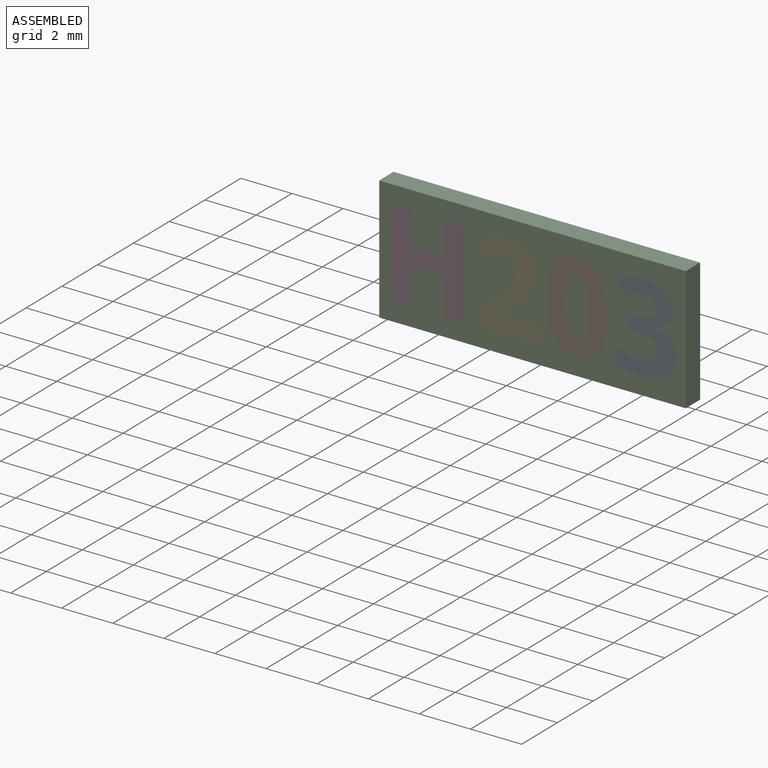
[diagram: assembled view]
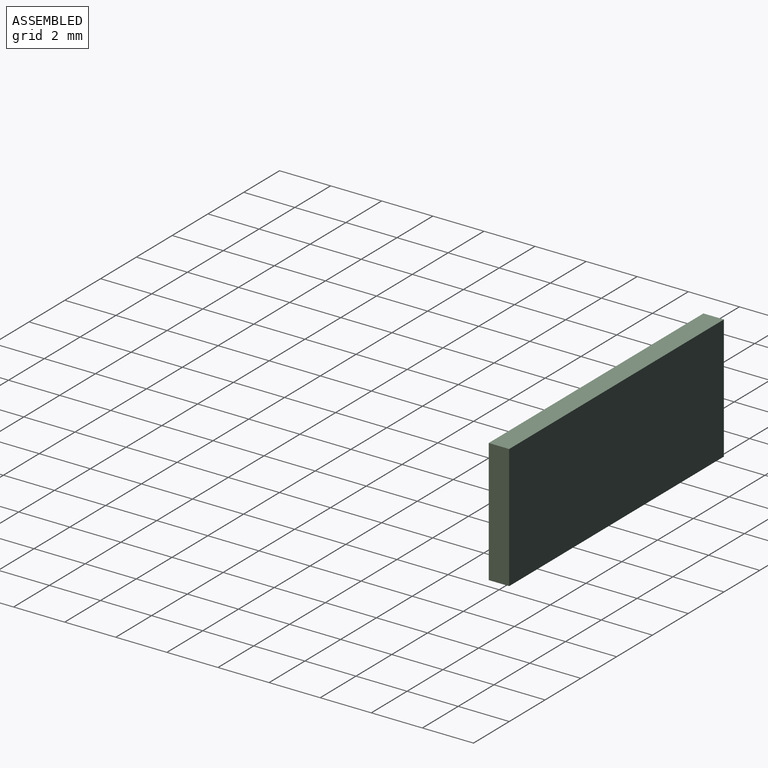
[diagram: assembled view, second angle]
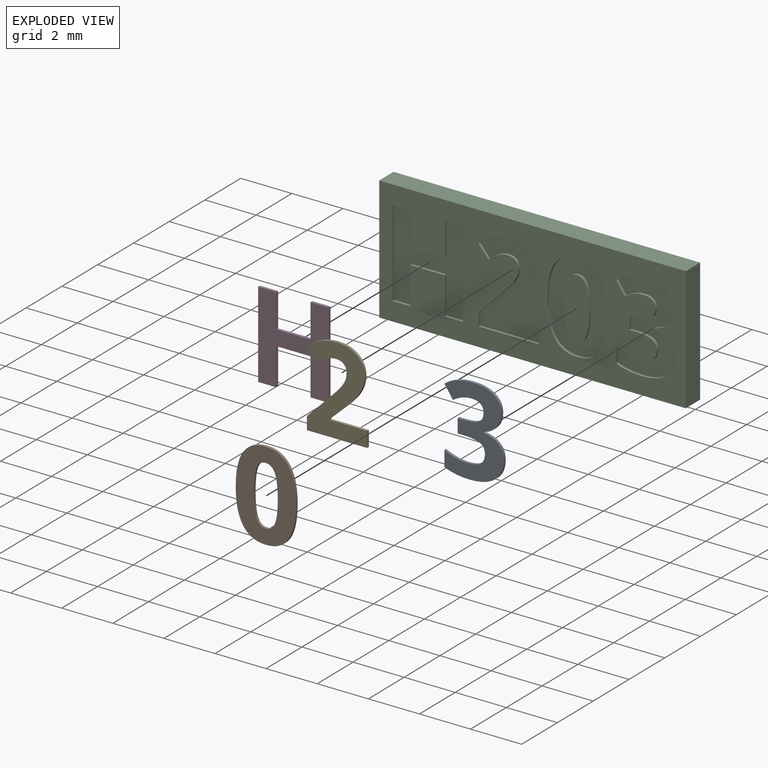
[diagram: exploded view]
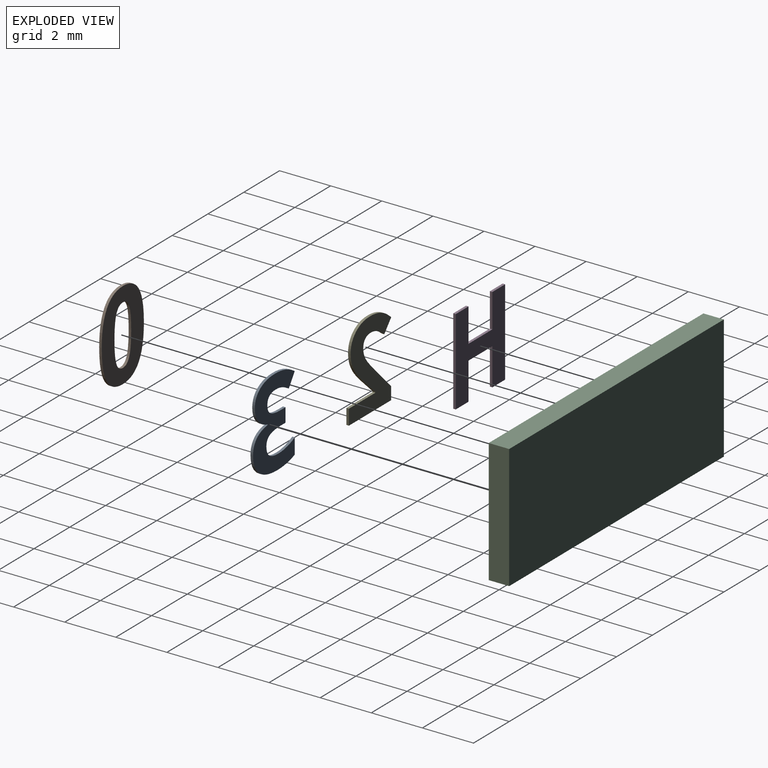
[diagram: exploded view, second angle]
ASSEMBLY  parts=5 mates=4
PART A: 29 faces, bbox 2.3x0.1x3.5 mm
  f0: plane 3.47x2.33mm, normal (0,-1,0), area 4.3mm2, adj f1,f2,f3,f4,f5,f6,f7,f8
  f1: extruded ~0.83x0.21mm, area 0.1mm2, adj f0,f2,f25,f27
  f2: extruded ~1.1x0.33mm, area 0.1mm2, adj f0,f1,f3,f25
  f3: plane 0.49x0.33mm, normal (-0.83,0,-0.56), area 0.1mm2, adj f0,f2,f4,f25
  f4: extruded ~0.38x0.19mm, area 0mm2, adj f0,f3,f5,f25
  f5: extruded ~0.34x0.1mm, area 0mm2, adj f0,f4,f6,f25
  f6: extruded ~0.48x0.38mm, area 0.1mm2, adj f0,f5,f7,f25
  f7: extruded ~0.35x0.18mm, area 0mm2, adj f0,f6,f8,f25
  f8: extruded ~0.57x0.1mm, area 0.1mm2, adj f0,f7,f9,f25
  f9: plane 0.26x0.1mm, normal (0,0,1), area 0mm2, adj f0,f8,f10,f25
  f10: plane 0.55x0.1mm, normal (-1,0,0), area 0.1mm2, adj f0,f9,f11,f25
  f11: plane 0.26x0.1mm, normal (0,0,-1), area 0mm2, adj f0,f10,f12,f25
  f12: extruded ~0.62x0.1mm, area 0.1mm2, adj f0,f11,f13,f25
  f13: extruded ~0.34x0.19mm, area 0mm2, adj f0,f12,f14,f25
  f14: extruded ~0.39x0.17mm, area 0mm2, adj f0,f13,f15,f25
  f15: extruded ~0.52x0.12mm, area 0.1mm2, adj f0,f14,f16,f25
  f16: extruded ~0.47x0.1mm, area 0mm2, adj f0,f15,f17,f25
  f17: extruded ~0.43x0.16mm, area 0mm2, adj f0,f16,f18,f25
  f18: plane 0.61x0.1mm, normal (-1,0,0), area 0.1mm2, adj f0,f17,f19,f25
  f19: extruded ~0.97x0.18mm, area 0.1mm2, adj f0,f18,f20,f25
  f20: extruded ~1.01x0.27mm, area 0.1mm2, adj f0,f19,f21,f25
  f21: extruded ~0.76x0.35mm, area 0.1mm2, adj f0,f20,f22,f25
  f22: extruded ~0.53x0.21mm, area 0.1mm2, adj f0,f21,f23,f25
  f23: extruded ~0.62x0.25mm, area 0.1mm2, adj f0,f22,f24,f25
  f24: plane 0.1x0.01mm, normal (1,0,0), area 0mm2, adj f0,f23,f25,f26
  f25: plane 3.47x2.33mm, normal (0,1,0), area 4.3mm2, adj f1,f2,f3,f4,f5,f6,f7,f8
  f26: extruded ~0.54x0.3mm, area 0.1mm2, adj f0,f24,f25,f28
  f27: extruded ~0.59x0.3mm, area 0.1mm2, adj f0,f1,f25,f28
  f28: extruded ~0.54x0.19mm, area 0.1mm2, adj f0,f25,f26,f27
PART B: 18 faces, bbox 2.4x0.1x3.5 mm
  f0: plane 3.47x2.36mm, normal (0,-1,0), area 5mm2, adj f1,f2,f3,f4,f5,f6,f7,f8
  f1: extruded ~0.88x0.44mm, area 0.1mm2, adj f0,f2,f11,f13
  f2: extruded ~0.89x0.42mm, area 0.1mm2, adj f0,f1,f3,f11
  f3: extruded ~1.32x0.29mm, area 0.1mm2, adj f0,f2,f4,f11
  f4: extruded ~1.29x0.3mm, area 0.1mm2, adj f0,f3,f5,f11
  f5: extruded ~0.88x0.44mm, area 0.1mm2, adj f0,f4,f11,f12
  f6: extruded ~0.36x0.27mm, area 0mm2, adj f0,f7,f11,f16
  f7: extruded ~0.36x0.27mm, area 0mm2, adj f0,f6,f8,f11
  f8: extruded ~0.89x0.11mm, area 0.1mm2, adj f0,f7,f9,f11
  f9: extruded ~0.89x0.11mm, area 0.1mm2, adj f0,f8,f10,f11
  f10: extruded ~0.36x0.27mm, area 0mm2, adj f0,f9,f11,f15
  f11: plane 3.47x2.36mm, normal (0,1,0), area 5mm2, adj f1,f2,f3,f4,f5,f6,f7,f8
  f12: extruded ~0.89x0.42mm, area 0.1mm2, adj f0,f5,f11,f14
  f13: extruded ~1.3x0.3mm, area 0.1mm2, adj f0,f1,f11,f14
  f14: extruded ~1.31x0.29mm, area 0.1mm2, adj f0,f11,f12,f13
  f15: extruded ~0.36x0.27mm, area 0mm2, adj f0,f10,f11,f17
  f16: extruded ~0.89x0.11mm, area 0.1mm2, adj f0,f6,f11,f17
  f17: extruded ~0.89x0.11mm, area 0.1mm2, adj f0,f11,f15,f16
PART C: 90 faces, bbox 12x0.8x4.9 mm
  f0: plane 12x4.85mm, normal (0,-1,0), area 37.2mm2, adj f1,f2,f3,f4,f6,f7,f8,f9
  f1: plane 12x0.8mm, normal (0,0,-1), area 9.6mm2, adj f0,f2,f4,f5
  f2: plane 4.85x0.8mm, normal (1,0,0), area 3.9mm2, adj f0,f1,f3,f5
  f3: plane 12x0.8mm, normal (0,0,1), area 9.6mm2, adj f0,f2,f4,f5
  f4: plane 4.85x0.8mm, normal (-1,0,0), area 3.9mm2, adj f0,f1,f3,f5
  f5: plane 12x4.85mm, normal (0,1,0), area 58.2mm2, adj f1,f2,f3,f4
  f6: plane 0.6x0.1mm, normal (-1,0,0), area 0.1mm2, adj f0,f7,f29,f30
  f7: plane 1.47x0.1mm, normal (0,0,-1), area 0.1mm2, adj f0,f6,f8,f30
  f8: plane 0.1x0.03mm, normal (-1,0,0), area 0mm2, adj f0,f7,f9,f30
  f9: plane 0.43x0.41mm, normal (-0.69,0,0.73), area 0.1mm2, adj f0,f8,f10,f30
  f10: extruded ~0.61x0.61mm, area 0.1mm2, adj f0,f9,f11,f30
  f11: extruded ~0.42x0.25mm, area 0mm2, adj f0,f10,f12,f30
  f12: extruded ~0.44x0.1mm, area 0mm2, adj f0,f11,f13,f30
  f13: extruded ~0.48x0.13mm, area 0.1mm2, adj f0,f12,f14,f30
  f14: extruded ~0.38x0.32mm, area 0.1mm2, adj f0,f13,f15,f30
  f15: extruded ~0.56x0.12mm, area 0.1mm2, adj f0,f14,f16,f30
  f16: extruded ~0.43x0.1mm, area 0mm2, adj f0,f15,f17,f30
  f17: extruded ~0.36x0.13mm, area 0mm2, adj f0,f16,f18,f30
  f18: extruded ~0.41x0.3mm, area 0.1mm2, adj f0,f17,f19,f30
  f19: plane 0.46x0.39mm, normal (0.76,0,0.65), area 0.1mm2, adj f0,f18,f20,f30
  f20: extruded ~0.39x0.26mm, area 0mm2, adj f0,f19,f21,f30
  f21: extruded ~0.38x0.1mm, area 0mm2, adj f0,f20,f22,f30
  f22: extruded ~0.3x0.1mm, area 0mm2, adj f0,f21,f23,f30
  f23: extruded ~0.3x0.11mm, area 0mm2, adj f0,f22,f24,f30
  f24: extruded ~0.26x0.1mm, area 0mm2, adj f0,f23,f25,f30
  f25: extruded ~0.28x0.17mm, area 0mm2, adj f0,f24,f26,f30
  f26: extruded ~0.53x0.49mm, area 0.1mm2, adj f0,f25,f27,f30
  f27: plane 0.86x0.85mm, normal (0.71,0,-0.7), area 0.1mm2, adj f0,f26,f28,f30
  f28: plane 0.5x0.1mm, normal (1,0,0), area 0mm2, adj f0,f27,f29,f30
  f29: plane 2.36x0.1mm, normal (0,0,1), area 0.2mm2, adj f0,f6,f28,f30
  f30: plane 3.42x2.37mm, normal (0,-1,0), area 4.2mm2, adj f6,f7,f8,f9,f10,f11,f12,f13
  f31: extruded ~0.59x0.3mm, area 0.1mm2, adj f0,f32,f57,f58
  f32: extruded ~0.83x0.21mm, area 0.1mm2, adj f0,f31,f33,f58
  f33: extruded ~1.1x0.33mm, area 0.1mm2, adj f0,f32,f34,f58
  f34: plane 0.49x0.33mm, normal (0.83,0,0.56), area 0.1mm2, adj f0,f33,f35,f58
  f35: extruded ~0.38x0.19mm, area 0mm2, adj f0,f34,f36,f58
  f36: extruded ~0.34x0.1mm, area 0mm2, adj f0,f35,f37,f58
  f37: extruded ~0.48x0.38mm, area 0.1mm2, adj f0,f36,f38,f58
  f38: extruded ~0.35x0.18mm, area 0mm2, adj f0,f37,f39,f58
  f39: extruded ~0.57x0.1mm, area 0.1mm2, adj f0,f38,f40,f58
  f40: plane 0.26x0.1mm, normal (0,0,-1), area 0mm2, adj f0,f39,f41,f58
  f41: plane 0.55x0.1mm, normal (1,0,0), area 0.1mm2, adj f0,f40,f42,f58
  f42: plane 0.26x0.1mm, normal (0,0,1), area 0mm2, adj f0,f41,f43,f58
  f43: extruded ~0.62x0.1mm, area 0.1mm2, adj f0,f42,f44,f58
  f44: extruded ~0.34x0.19mm, area 0mm2, adj f0,f43,f45,f58
  f45: extruded ~0.39x0.17mm, area 0mm2, adj f0,f44,f46,f58
  f46: extruded ~0.52x0.12mm, area 0.1mm2, adj f0,f45,f47,f58
  f47: extruded ~0.47x0.1mm, area 0mm2, adj f0,f46,f48,f58
  f48: extruded ~0.43x0.16mm, area 0mm2, adj f0,f47,f49,f58
  f49: plane 0.61x0.1mm, normal (1,0,0), area 0.1mm2, adj f0,f48,f50,f58
  f50: extruded ~0.97x0.18mm, area 0.1mm2, adj f0,f49,f51,f58
  f51: extruded ~1.01x0.27mm, area 0.1mm2, adj f0,f50,f52,f58
  f52: extruded ~0.76x0.35mm, area 0.1mm2, adj f0,f51,f53,f58
  f53: extruded ~0.53x0.21mm, area 0.1mm2, adj f0,f52,f54,f58
  f54: extruded ~0.62x0.25mm, area 0.1mm2, adj f0,f53,f55,f58
  f55: plane 0.1x0.01mm, normal (-1,0,0), area 0mm2, adj f0,f54,f56,f58
  f56: extruded ~0.54x0.3mm, area 0.1mm2, adj f0,f55,f57,f58
  f57: extruded ~0.54x0.19mm, area 0.1mm2, adj f0,f31,f56,f58
  f58: plane 3.47x2.33mm, normal (0,-1,0), area 4.3mm2, adj f31,f32,f33,f34,f35,f36,f37,f38
  f59: extruded ~1.3x0.3mm, area 0.1mm2, adj f0,f60,f74,f75
  f60: extruded ~0.88x0.44mm, area 0.1mm2, adj f0,f59,f61,f75
  f61: extruded ~0.89x0.42mm, area 0.1mm2, adj f0,f60,f62,f75
  f62: extruded ~1.32x0.29mm, area 0.1mm2, adj f0,f61,f63,f75
  f63: extruded ~1.29x0.3mm, area 0.1mm2, adj f0,f62,f64,f75
  f64: extruded ~0.88x0.44mm, area 0.1mm2, adj f0,f63,f65,f75
  f65: extruded ~0.89x0.42mm, area 0.1mm2, adj f0,f64,f74,f75
  f66: extruded ~0.89x0.11mm, area 0.1mm2, adj f67,f73,f75,f76
  f67: extruded ~0.36x0.27mm, area 0mm2, adj f66,f68,f75,f76
  f68: extruded ~0.36x0.27mm, area 0mm2, adj f67,f69,f75,f76
  f69: extruded ~0.89x0.11mm, area 0.1mm2, adj f68,f70,f75,f76
  f70: extruded ~0.89x0.11mm, area 0.1mm2, adj f69,f71,f75,f76
  f71: extruded ~0.36x0.27mm, area 0mm2, adj f70,f72,f75,f76
  f72: extruded ~0.36x0.27mm, area 0mm2, adj f71,f73,f75,f76
  f73: extruded ~0.89x0.11mm, area 0.1mm2, adj f66,f72,f75,f76
  f74: extruded ~1.31x0.29mm, area 0.1mm2, adj f0,f59,f65,f75
  f75: plane 3.47x2.36mm, normal (0,-1,0), area 5mm2, adj f59,f60,f61,f62,f63,f64,f65,f66
  f76: plane 2.32x0.94mm, normal (0,-1,0), area 1.8mm2, adj f66,f67,f68,f69,f70,f71,f72,f73
  f77: plane 3.37x0.1mm, normal (-1,0,0), area 0.3mm2, adj f0,f78,f88,f89
  f78: plane 0.71x0.1mm, normal (0,0,-1), area 0.1mm2, adj f0,f77,f79,f89
  f79: plane 1.32x0.1mm, normal (1,0,0), area 0.1mm2, adj f0,f78,f80,f89
  f80: plane 1.33x0.1mm, normal (0,0,-1), area 0.1mm2, adj f0,f79,f81,f89
  f81: plane 1.32x0.1mm, normal (-1,0,0), area 0.1mm2, adj f0,f80,f82,f89
  f82: plane 0.72x0.1mm, normal (0,0,-1), area 0.1mm2, adj f0,f81,f83,f89
  f83: plane 3.37x0.1mm, normal (1,0,0), area 0.3mm2, adj f0,f82,f84,f89
  f84: plane 0.72x0.1mm, normal (0,0,1), area 0.1mm2, adj f0,f83,f85,f89
  f85: plane 1.46x0.1mm, normal (-1,0,0), area 0.1mm2, adj f0,f84,f86,f89
  f86: plane 1.33x0.1mm, normal (0,0,1), area 0.1mm2, adj f0,f85,f87,f89
  f87: plane 1.46x0.1mm, normal (1,0,0), area 0.1mm2, adj f0,f86,f88,f89
  f88: plane 0.71x0.1mm, normal (0,0,1), area 0.1mm2, adj f0,f77,f87,f89
  f89: plane 3.37x2.76mm, normal (0,-1,0), area 5.6mm2, adj f77,f78,f79,f80,f81,f82,f83,f84
PART D: 14 faces, bbox 2.8x0.1x3.4 mm
  f0: plane 3.37x2.76mm, normal (0,-1,0), area 5.6mm2, adj f1,f2,f3,f4,f5,f6,f7,f8
  f1: plane 0.71x0.1mm, normal (0,0,1), area 0.1mm2, adj f0,f2,f10,f12
  f2: plane 1.32x0.1mm, normal (-1,0,0), area 0.1mm2, adj f0,f1,f3,f10
  f3: plane 1.33x0.1mm, normal (0,0,1), area 0.1mm2, adj f0,f2,f4,f10
  f4: plane 1.32x0.1mm, normal (1,0,0), area 0.1mm2, adj f0,f3,f5,f10
  f5: plane 0.72x0.1mm, normal (0,0,1), area 0.1mm2, adj f0,f4,f6,f10
  f6: plane 3.37x0.1mm, normal (-1,0,0), area 0.3mm2, adj f0,f5,f7,f10
  f7: plane 0.72x0.1mm, normal (0,0,-1), area 0.1mm2, adj f0,f6,f8,f10
  f8: plane 1.46x0.1mm, normal (1,0,0), area 0.1mm2, adj f0,f7,f9,f10
  f9: plane 1.33x0.1mm, normal (0,0,-1), area 0.1mm2, adj f0,f8,f10,f11
  f10: plane 3.37x2.76mm, normal (0,1,0), area 5.6mm2, adj f1,f2,f3,f4,f5,f6,f7,f8
  f11: plane 1.46x0.1mm, normal (-1,0,0), area 0.1mm2, adj f0,f9,f10,f13
  f12: plane 3.37x0.1mm, normal (1,0,0), area 0.3mm2, adj f0,f1,f10,f13
  f13: plane 0.71x0.1mm, normal (0,0,-1), area 0.1mm2, adj f0,f10,f11,f12
PART E: 26 faces, bbox 2.4x0.1x3.4 mm
  f0: plane 3.42x2.37mm, normal (0,-1,0), area 4.2mm2, adj f1,f2,f3,f4,f5,f6,f7,f8
  f1: plane 1.47x0.1mm, normal (0,0,1), area 0.1mm2, adj f0,f2,f22,f24
  f2: plane 0.1x0.03mm, normal (1,0,0), area 0mm2, adj f0,f1,f3,f22
  f3: plane 0.43x0.41mm, normal (0.69,0,-0.73), area 0.1mm2, adj f0,f2,f4,f22
  f4: extruded ~0.61x0.61mm, area 0.1mm2, adj f0,f3,f5,f22
  f5: extruded ~0.42x0.25mm, area 0mm2, adj f0,f4,f6,f22
  f6: extruded ~0.44x0.1mm, area 0mm2, adj f0,f5,f7,f22
  f7: extruded ~0.48x0.13mm, area 0.1mm2, adj f0,f6,f8,f22
  f8: extruded ~0.38x0.32mm, area 0.1mm2, adj f0,f7,f9,f22
  f9: extruded ~0.56x0.12mm, area 0.1mm2, adj f0,f8,f10,f22
  f10: extruded ~0.43x0.1mm, area 0mm2, adj f0,f9,f11,f22
  f11: extruded ~0.36x0.13mm, area 0mm2, adj f0,f10,f12,f22
  f12: extruded ~0.41x0.3mm, area 0.1mm2, adj f0,f11,f13,f22
  f13: plane 0.46x0.39mm, normal (-0.76,0,-0.65), area 0.1mm2, adj f0,f12,f14,f22
  f14: extruded ~0.39x0.26mm, area 0mm2, adj f0,f13,f15,f22
  f15: extruded ~0.38x0.1mm, area 0mm2, adj f0,f14,f16,f22
  f16: extruded ~0.3x0.1mm, area 0mm2, adj f0,f15,f17,f22
  f17: extruded ~0.3x0.11mm, area 0mm2, adj f0,f16,f18,f22
  f18: extruded ~0.26x0.1mm, area 0mm2, adj f0,f17,f19,f22
  f19: extruded ~0.28x0.17mm, area 0mm2, adj f0,f18,f20,f22
  f20: extruded ~0.53x0.49mm, area 0.1mm2, adj f0,f19,f21,f22
  f21: plane 0.86x0.85mm, normal (-0.71,0,0.7), area 0.1mm2, adj f0,f20,f22,f23
  f22: plane 3.42x2.37mm, normal (0,1,0), area 4.2mm2, adj f1,f2,f3,f4,f5,f6,f7,f8
  f23: plane 0.5x0.1mm, normal (-1,0,0), area 0mm2, adj f0,f21,f22,f25
  f24: plane 0.6x0.1mm, normal (1,0,0), area 0.1mm2, adj f0,f1,f22,f25
  f25: plane 2.36x0.1mm, normal (0,0,-1), area 0.2mm2, adj f0,f22,f23,f24
PLACE A t=(2.87,0.35,-0.02)mm
PLACE B t=(-1.17,0.35,-0.02)mm
PLACE C t=(-0.06,0.35,-0.02)mm
PLACE D t=(-0.06,0.35,-0.02)mm
PLACE E t=(-2.5,0.35,-0.02)mm
MATE fastened B.f0 <-> C.f76  axis (0,-1,0) through (1.68,-0.45,-1.19)mm
MATE fastened A.f0 <-> C.f0  axis (0,-1,0) through (3.21,-0.45,-1.58)mm
MATE fastened D.f0 <-> C.f0  axis (0,-1,0) through (-5.55,-0.45,-1.72)mm
MATE fastened E.f0 <-> C.f0  axis (0,-1,0) through (-2.17,-0.45,-1.72)mm
